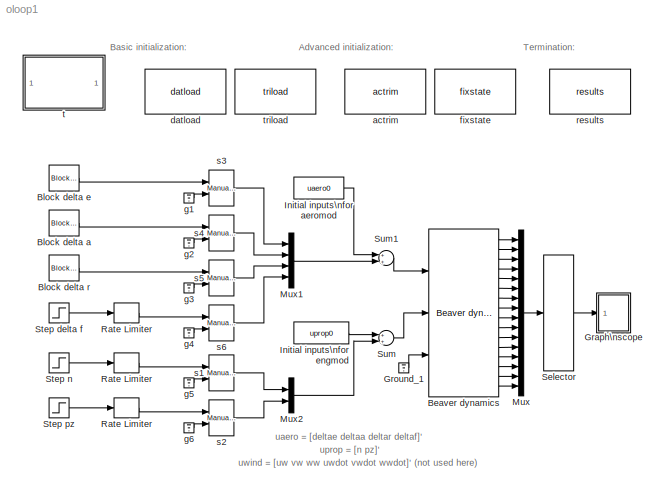
MODEL oloop1
KIND model
BLOCK [RateLimiter]  Rate Limiter
  FallingSlewLimit = -1.0
  RisingSlewLimit = 1.0
  SID = 1
BLOCK [Reference] Beaver dynamics  REF=fdclib10/Beaver dynamics\n for open-loop models
  Ports = [3, 16]
  SID = 2
  SourceBlock = fdclib10/Beaver dynamics\n for open-loop models
  SourceType = SubSystem
BLOCK [Reference] Block delta a  REF=fdctools/Block Fcn
  Ports = [0, 1]
  SID = 3
  SourceBlock = fdctools/Block Fcn
  SourceType = Block Fcn
  tstart = 0.001
  tstop = 2
  yblock = 3*pi/180
  yinit = 0
BLOCK [Reference] Block delta e  REF=fdctools/Block Fcn
  Ports = [0, 1]
  SID = 4
  SourceBlock = fdctools/Block Fcn
  SourceType = Block Fcn
  tstart = 0.001
  tstop = 2
  yblock = 3*pi/180
  yinit = 0
BLOCK [Reference] Block delta r  REF=fdctools/Block Fcn
  Ports = [0, 1]
  SID = 5
  SourceBlock = fdctools/Block Fcn
  SourceType = Block Fcn
  tstart = 0.001
  tstop = 2
  yblock = 3*pi/180
  yinit = 0
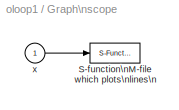
BLOCK [SubSystem] Graph\nscope
  Ports = [1]
  RequestExecContextInheritance = off
  SID = 6
  ShowPortLabels = none
BLOCK [S-Function] Graph\nscope/S-function\nM-file which plots\nlines\n
  CopyFcn = sfunyst([],[],[],'CopyBlock')
  DeleteFcn = sfunyst([],[],[],'DeleteBlock')
  EnableBusSupport = off
  FunctionName = sfunyst
  LoadFcn = sfunyst([],[],[],'LoadBlock')
  Parameters = ax, color, npts
  Ports = [1]
  SFcnIsStateOwnerBlock = off
  SFunctionDeploymentMode = off
  SID = 8
BLOCK [Inport] Graph\nscope/x
  IconDisplay = Port number
  SID = 7
BLOCK [Ground] Ground_1
  SID = 9
BLOCK [Constant] Initial inputs\nfor aeromod
  SID = 10
  Value = uaero0
BLOCK [Constant] Initial inputs\nfor engmod
  SID = 11
  Value = uprop0
BLOCK [Mux] Mux
  DisplayOption = bar
  Inputs = 16
  Ports = [16, 1]
  SID = 12
BLOCK [Mux] Mux1
  Ports = [4, 1]
  SID = 13
BLOCK [Mux] Mux2
  Inputs = 2
  Ports = [2, 1]
  SID = 14
BLOCK [RateLimiter] Rate Limiter
  FallingSlewLimit = -pi/180
  RisingSlewLimit = pi/180
  SID = 15
BLOCK [RateLimiter] Rate Limiter 
  FallingSlewLimit = -50
  RisingSlewLimit = 50
  SID = 16
BLOCK [Selector] Selector
  IndexOptions = Index vector (dialog)
  Indices = 8
  InputPortWidth = 16
  OutputSizes = 1
  Ports = [1, 1]
  SID = 17
BLOCK [Step] Step delta f
  After = 3*pi/180
  SID = 18
  SampleTime = 0
  Time = 0.001
BLOCK [Step] Step n
  After = 200
  SID = 19
  SampleTime = 0
  Time = 0.001
BLOCK [Step] Step pz
  After = 2
  SID = 20
  SampleTime = 0
  Time = 0.001
BLOCK [Sum] Sum
  Ports = [2, 1]
  SID = 21
BLOCK [Sum] Sum1
  Ports = [2, 1]
  SID = 22
BLOCK [Reference] actrim  REF=fbuttons/actrim
  Ports = []
  SID = 23
  SourceBlock = fbuttons/actrim
  SourceType = actrim
BLOCK [Reference] datload  REF=fbuttons/datload
  Ports = []
  SID = 24
  SourceBlock = fbuttons/datload
  SourceType = datload
BLOCK [Reference] fixstate  REF=fbuttons/fixstate
  Ports = []
  SID = 25
  SourceBlock = fbuttons/fixstate
  SourceType = fixstate
BLOCK [Ground] g1
  SID = 26
BLOCK [Ground] g2
  SID = 27
BLOCK [Ground] g3
  SID = 28
BLOCK [Ground] g4
  SID = 29
BLOCK [Ground] g5
  SID = 30
BLOCK [Ground] g6
  SID = 31
BLOCK [Reference] results  REF=fbuttons/results
  Ports = []
  SID = 32
  SourceBlock = fbuttons/results
  SourceType = results
BLOCK [Reference] s1  REF=simulink3/Nonlinear/Manual Switch
  Ports = [2, 1]
  SID = 33
  SourceBlock = simulink3/Nonlinear/Manual Switch
  SourceProductBaseCode = SL
  SourceProductName = Simulink
  SourceType = Manual Switch
  action = 0
  sw = 0
BLOCK [Reference] s2  REF=simulink3/Nonlinear/Manual Switch
  Ports = [2, 1]
  SID = 34
  SourceBlock = simulink3/Nonlinear/Manual Switch
  SourceProductBaseCode = SL
  SourceProductName = Simulink
  SourceType = Manual Switch
  action = 0
  sw = 0
BLOCK [Reference] s3  REF=simulink3/Nonlinear/Manual Switch
  Ports = [2, 1]
  SID = 35
  SourceBlock = simulink3/Nonlinear/Manual Switch
  SourceProductBaseCode = SL
  SourceProductName = Simulink
  SourceType = Manual Switch
  action = 0
  sw = 1
BLOCK [Reference] s4  REF=simulink3/Nonlinear/Manual Switch
  Ports = [2, 1]
  SID = 36
  SourceBlock = simulink3/Nonlinear/Manual Switch
  SourceProductBaseCode = SL
  SourceProductName = Simulink
  SourceType = Manual Switch
  action = 0
  sw = 0
BLOCK [Reference] s5  REF=simulink3/Nonlinear/Manual Switch
  Ports = [2, 1]
  SID = 37
  SourceBlock = simulink3/Nonlinear/Manual Switch
  SourceProductBaseCode = SL
  SourceProductName = Simulink
  SourceType = Manual Switch
  action = 0
  sw = 0
BLOCK [Reference] s6  REF=simulink3/Nonlinear/Manual Switch
  Ports = [2, 1]
  SID = 38
  SourceBlock = simulink3/Nonlinear/Manual Switch
  SourceProductBaseCode = SL
  SourceProductName = Simulink
  SourceType = Manual Switch
  action = 0
  sw = 0
BLOCK [SubSystem] t
  OpenFcn = browse oloop
  Ports = []
  RequestExecContextInheritance = off
  SID = 39
  ShowPortLabels = none
BLOCK [Reference] triload  REF=fbuttons/triload
  Ports = []
  SID = 40
  SourceBlock = fbuttons/triload
  SourceType = triload
ANNOTATION (root): Advanced initialization:
ANNOTATION (root): Basic initialization:
ANNOTATION (root): Termination:
ANNOTATION (root): uaero = [deltae deltaa deltar deltaf]'
ANNOTATION (root): uprop = [n pz]'
ANNOTATION (root): uwind = [uw vw ww uwdot vwdot wwdot]' (not used here)
LINE  Rate Limiter:1 -> s2:1
LINE Beaver dynamics:1 -> Mux:1
LINE Beaver dynamics:10 -> Mux:10
LINE Beaver dynamics:11 -> Mux:11
LINE Beaver dynamics:12 -> Mux:12
LINE Beaver dynamics:13 -> Mux:13
LINE Beaver dynamics:14 -> Mux:14
LINE Beaver dynamics:15 -> Mux:15
LINE Beaver dynamics:16 -> Mux:16
LINE Beaver dynamics:2 -> Mux:2
LINE Beaver dynamics:3 -> Mux:3
LINE Beaver dynamics:4 -> Mux:4
LINE Beaver dynamics:5 -> Mux:5
LINE Beaver dynamics:6 -> Mux:6
LINE Beaver dynamics:7 -> Mux:7
LINE Beaver dynamics:8 -> Mux:8
LINE Beaver dynamics:9 -> Mux:9
LINE Block delta a:1 -> s4:1
LINE Block delta e:1 -> s3:1
LINE Block delta r:1 -> s5:1
LINE Graph\nscope/x:1 -> Graph\nscope/S-function\nM-file which plots\nlines\n:1
LINE Ground_1:1 -> Beaver dynamics:3
LINE Initial inputs\nfor aeromod:1 -> Sum1:1
LINE Initial inputs\nfor engmod:1 -> Sum:1
LINE Mux1:1 -> Sum1:2
LINE Mux2:1 -> Sum:2
LINE Mux:1 -> Selector:1
LINE Rate Limiter :1 -> s1:1
LINE Rate Limiter:1 -> s6:1
LINE Selector:1 -> Graph\nscope:1
LINE Step delta f:1 -> Rate Limiter:1
LINE Step n:1 -> Rate Limiter :1
LINE Step pz:1 ->  Rate Limiter:1
LINE Sum1:1 -> Beaver dynamics:1
LINE Sum:1 -> Beaver dynamics:2
LINE g1:1 -> s3:2
LINE g2:1 -> s4:2
LINE g3:1 -> s5:2
LINE g4:1 -> s6:2
LINE g5:1 -> s1:2
LINE g6:1 -> s2:2
LINE s1:1 -> Mux2:1
LINE s2:1 -> Mux2:2
LINE s3:1 -> Mux1:1
LINE s4:1 -> Mux1:2
LINE s5:1 -> Mux1:3
LINE s6:1 -> Mux1:4
